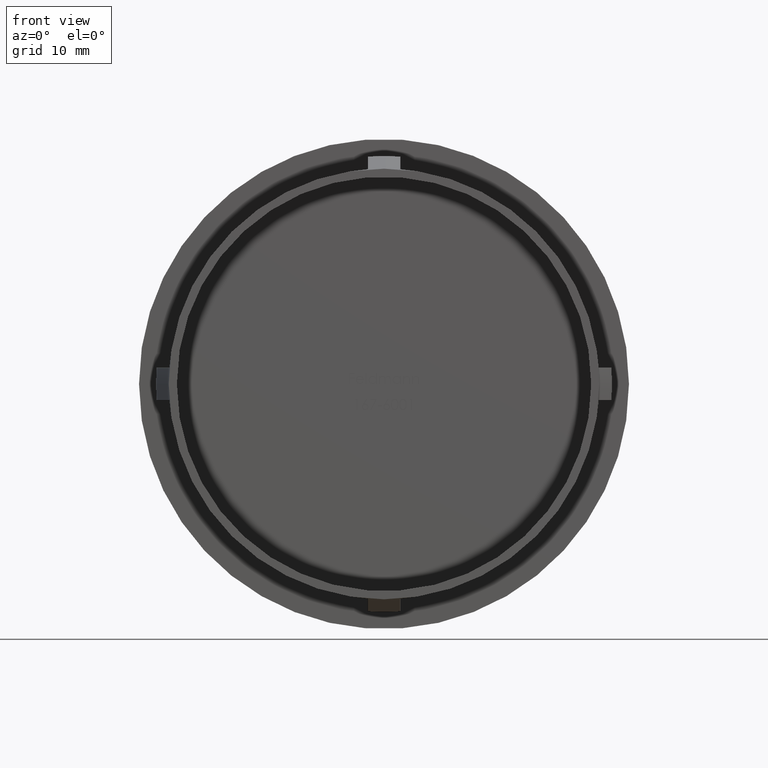
[diagram: clean part render]
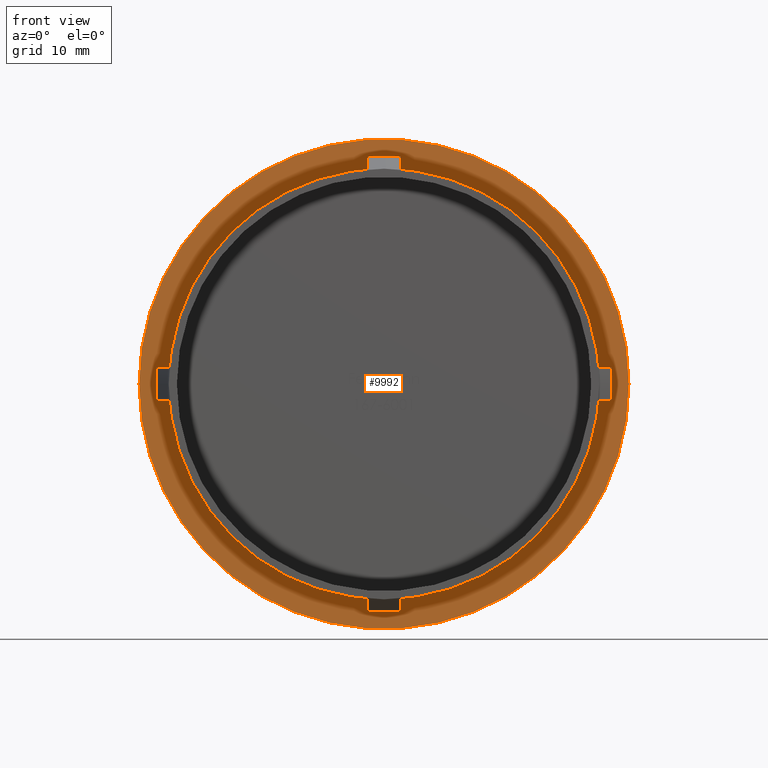
[diagram: same view with one face highlighted and labeled with its STEP entity id]
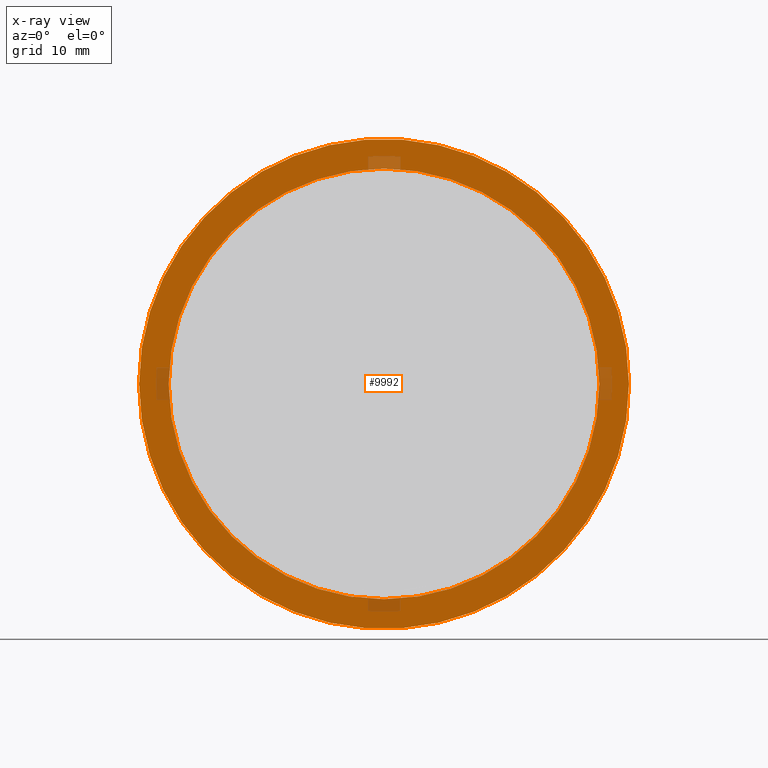
[diagram: x-ray of the same camera — body ghosted, the highlighted face saturated]
A machine part, front view. The second image highlights one B-rep face of the part: STEP entity #9992.
The next image is the same camera in x-ray: the body ghosted, the highlighted face saturated — about 4% of this face is hidden behind the body in this view.
In plain terms, the highlighted planar face has unit normal (-0, 1, 0).
Its self-contained STEP definition (entity closure, byte-faithful):
#9 = FACE_OUTER_BOUND ( 'NONE', #6155, .T. ) ;
#23 = DIRECTION ( 'NONE',  ( -1.000000000000000000, -1.309225264888156400E-016, 0.0000000000000000000 ) ) ;
#434 = AXIS2_PLACEMENT_3D ( 'NONE', #4139, #5323, #13829 ) ;
#2425 = ORIENTED_EDGE ( 'NONE', *, *, #11369, .F. ) ;
#2662 = EDGE_CURVE ( 'NONE', #7720, #7985, #11331, .T. ) ;
#2855 = CARTESIAN_POINT ( 'NONE',  ( 1.836970198721031900E-016, 26.69999999999999900, 0.0000000000000000000 ) ) ;
#3450 = EDGE_CURVE ( 'NONE', #3780, #9894, #4461, .T. ) ;
#3780 = VERTEX_POINT ( 'NONE', #10469 ) ;
#4139 = CARTESIAN_POINT ( 'NONE',  ( 1.836970198721031900E-016, 26.69999999999999900, 0.0000000000000000000 ) ) ;
#4361 = AXIS2_PLACEMENT_3D ( 'NONE', #10013, #11000, #6637 ) ;
#4461 = CIRCLE ( 'NONE', #434, 30.14999999999999500 ) ;
#4719 = AXIS2_PLACEMENT_3D ( 'NONE', #8767, #11029, #23 ) ;
#4761 = ORIENTED_EDGE ( 'NONE', *, *, #3450, .F. ) ;
#4906 = CIRCLE ( 'NONE', #7528, 30.14999999999999500 ) ;
#5206 = EDGE_CURVE ( 'NONE', #7985, #7720, #12815, .T. ) ;
#5323 = DIRECTION ( 'NONE',  ( -1.224646799147353200E-016, 1.000000000000000000, -0.0000000000000000000 ) ) ;
#6155 = EDGE_LOOP ( 'NONE', ( #4761, #2425 ) ) ;
#6266 = CARTESIAN_POINT ( 'NONE',  ( 26.50000000000000000, 26.70000000000000300, 3.245314017740486200E-015 ) ) ;
#6409 = CARTESIAN_POINT ( 'NONE',  ( 30.14999999999999500, 26.70000000000000300, 3.692310099429269600E-015 ) ) ;
#6637 = DIRECTION ( 'NONE',  ( -1.000000000000000000, -1.309225264888156400E-016, 0.0000000000000000000 ) ) ;
#6650 = DIRECTION ( 'NONE',  ( -1.000000000000000000, -1.224646799147353200E-016, 0.0000000000000000000 ) ) ;
#7146 = DIRECTION ( 'NONE',  ( -1.224646799147353200E-016, 1.000000000000000000, -0.0000000000000000000 ) ) ;
#7468 = CARTESIAN_POINT ( 'NONE',  ( -26.50000000000000000, 26.69999999999999600, 0.0000000000000000000 ) ) ;
#7528 = AXIS2_PLACEMENT_3D ( 'NONE', #2855, #7146, #9271 ) ;
#7615 = PLANE ( 'NONE',  #10701 ) ;
#7720 = VERTEX_POINT ( 'NONE', #6266 ) ;
#7729 = ORIENTED_EDGE ( 'NONE', *, *, #5206, .T. ) ;
#7985 = VERTEX_POINT ( 'NONE', #7468 ) ;
#8767 = CARTESIAN_POINT ( 'NONE',  ( 1.836970198721030900E-016, 26.69999999999999900, 0.0000000000000000000 ) ) ;
#9271 = DIRECTION ( 'NONE',  ( -1.000000000000000000, -1.150728673948131100E-016, 0.0000000000000000000 ) ) ;
#9894 = VERTEX_POINT ( 'NONE', #6409 ) ;
#9992 = ADVANCED_FACE ( 'NONE', ( #9, #13142 ), #7615, .F. ) ;
#10013 = CARTESIAN_POINT ( 'NONE',  ( 1.836970198721030900E-016, 26.69999999999999900, 0.0000000000000000000 ) ) ;
#10469 = CARTESIAN_POINT ( 'NONE',  ( -30.14999999999999500, 26.69999999999999600, 0.0000000000000000000 ) ) ;
#10701 = AXIS2_PLACEMENT_3D ( 'NONE', #13205, #11045, #6650 ) ;
#11000 = DIRECTION ( 'NONE',  ( -1.224646799147353200E-016, 1.000000000000000000, -0.0000000000000000000 ) ) ;
#11029 = DIRECTION ( 'NONE',  ( -1.224646799147353200E-016, 1.000000000000000000, -0.0000000000000000000 ) ) ;
#11045 = DIRECTION ( 'NONE',  ( -1.224646799147353200E-016, 1.000000000000000000, 0.0000000000000000000 ) ) ;
#11063 = ORIENTED_EDGE ( 'NONE', *, *, #2662, .T. ) ;
#11331 = CIRCLE ( 'NONE', #4361, 26.50000000000000000 ) ;
#11369 = EDGE_CURVE ( 'NONE', #9894, #3780, #4906, .T. ) ;
#12815 = CIRCLE ( 'NONE', #4719, 26.50000000000000000 ) ;
#13142 = FACE_BOUND ( 'NONE', #13977, .T. ) ;
#13205 = CARTESIAN_POINT ( 'NONE',  ( 30.14999999999999500, 26.70000000000000300, 0.0000000000000000000 ) ) ;
#13829 = DIRECTION ( 'NONE',  ( -1.000000000000000000, -1.150728673948131100E-016, 0.0000000000000000000 ) ) ;
#13977 = EDGE_LOOP ( 'NONE', ( #7729, #11063 ) ) ;